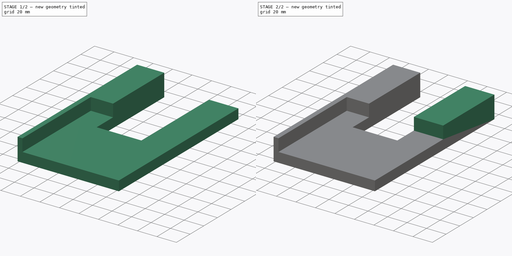
[diagram: build sequence overview — one tinted view per stage of 2, left to right]
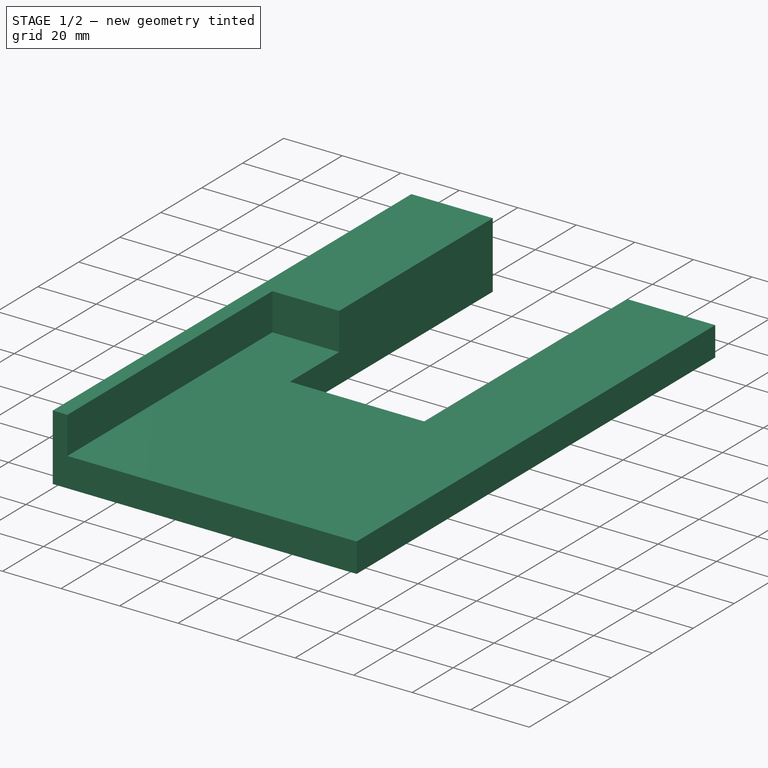
[diagram: stage 1 of 2 — iso view after this stage's code; geometry added in this stage tinted green]
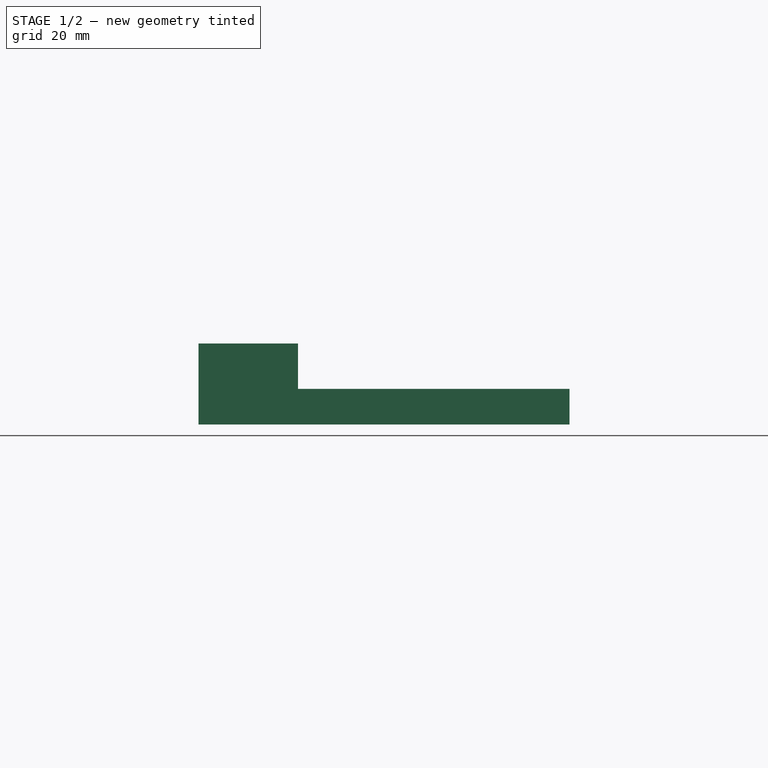
[diagram: stage 1 of 2 — front view after this stage's code; geometry added in this stage tinted green]
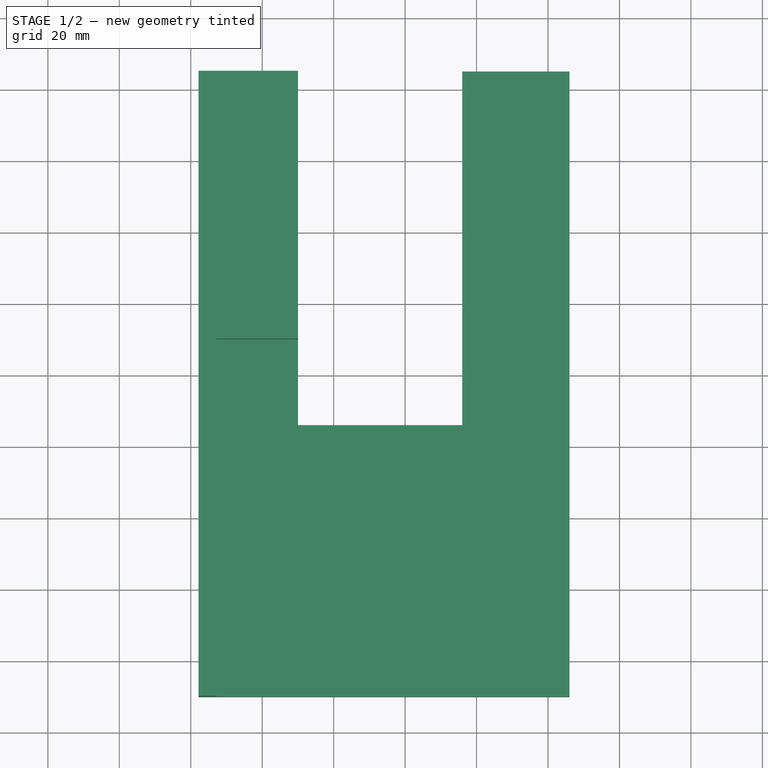
[diagram: stage 1 of 2 — top view after this stage's code; geometry added in this stage tinted green]
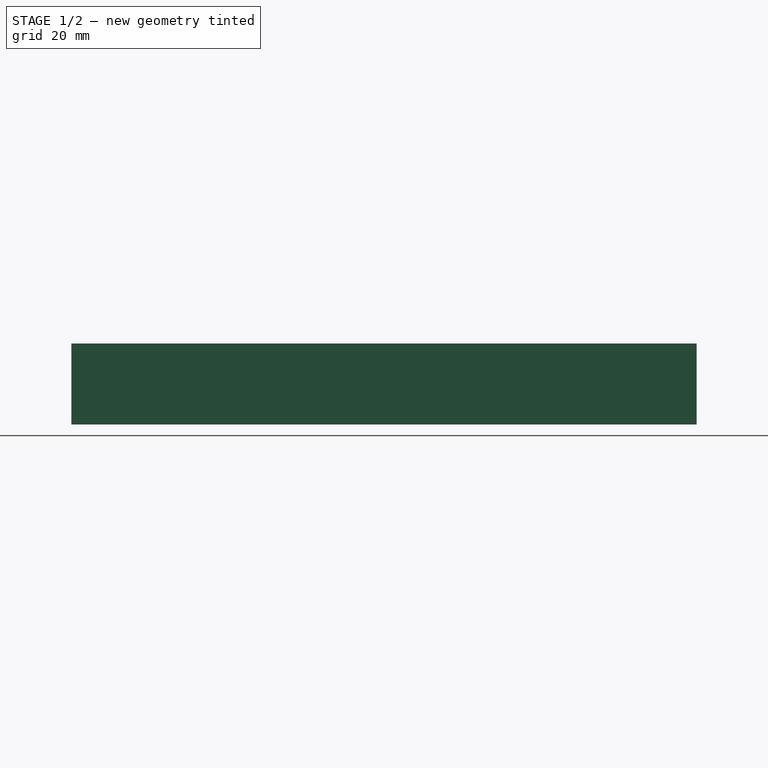
[diagram: stage 1 of 2 — right view after this stage's code; geometry added in this stage tinted green]
FCSTD DOCUMENT  (FreeCAD 1.0R38642 (Git))
Label: Shelf_Router_Guide
License: All rights reserved
LicenseURL: https://en.wikipedia.org/wiki/All_rights_reserved
objects: PartDesign::Pad×3, Sketcher::SketchObject×1, PartDesign::Body×1
note: 12 computed .brp shape members not serialized (recipe doc carries the construction recipe); baked Part::Feature solids carry a one-line shape summary decoded from their .brp

FEATURE [Sketcher::SketchObject] Sketch
  ArcFitTolerance = 1e-06
  AttachmentSupport = -> [XY_Plane]
  FullyConstrained = true
  MakeInternals = false
  MapMode = 5
  sketch-geometry (26):
    g0: LineSegment [constr] StartX=0 StartY=0 StartZ=0 EndX=0 EndY=-24 EndZ=0
    g1: LineSegment [constr] StartX=0 StartY=-24 StartZ=0 EndX=26 EndY=-24 EndZ=0
    g2: LineSegment [constr] StartX=26 StartY=-24 StartZ=0 EndX=26 EndY=0 EndZ=0
    g3: LineSegment [constr] StartX=26 StartY=0 StartZ=0 EndX=0 EndY=0 EndZ=0
    g4: LineSegment StartX=-10 StartY=-34 StartZ=0 EndX=36 EndY=-34 EndZ=0
    g5: LineSegment StartX=-10 StartY=65 StartZ=0 EndX=-37.825 EndY=65 EndZ=0
    g6: LineSegment StartX=-37.825 StartY=65 StartZ=0 EndX=-37.825 EndY=-10 EndZ=0
    g7: LineSegment [constr] StartX=0 StartY=-24 StartZ=0 EndX=0 EndY=-34 EndZ=0
    g8: LineSegment StartX=-37.825 StartY=-110 StartZ=0 EndX=-32.825 EndY=-110 EndZ=0
    g9: LineSegment StartX=-32.825 StartY=-110 StartZ=0 EndX=66 EndY=-110 EndZ=0
    g10: LineSegment StartX=-10 StartY=65 StartZ=0 EndX=-10 EndY=-10 EndZ=0
    g11: LineSegment StartX=-10 StartY=-10 StartZ=0 EndX=-10 EndY=-34 EndZ=0
    g12: LineSegment StartX=-32.825 StartY=-10 StartZ=0 EndX=-32.825 EndY=-110 EndZ=0
    g13: LineSegment StartX=-37.825 StartY=-10 StartZ=0 EndX=-37.825 EndY=-110 EndZ=0
    g14: LineSegment StartX=-10 StartY=-10 StartZ=0 EndX=-32.825 EndY=-10 EndZ=0
    g15: LineSegment StartX=-37.825 StartY=-10 StartZ=0 EndX=-32.825 EndY=-10 EndZ=0
    g16: LineSegment StartX=36 StartY=-34 StartZ=0 EndX=36 EndY=-10 EndZ=0
    g17: LineSegment StartX=36 StartY=-10 StartZ=0 EndX=36 EndY=65 EndZ=0
    g18: LineSegment StartX=66 StartY=-110 StartZ=0 EndX=66 EndY=-10 EndZ=0
    g19: LineSegment StartX=66 StartY=-10 StartZ=0 EndX=66 EndY=65 EndZ=0
    g20: LineSegment StartX=36 StartY=-10 StartZ=0 EndX=66 EndY=-10 EndZ=0
    g21: LineSegment StartX=66 StartY=65 StartZ=0 EndX=36 EndY=65 EndZ=0
    g22: LineSegment [constr] StartX=0 StartY=-10 StartZ=0 EndX=-10 EndY=-10 EndZ=0
    g23: LineSegment [constr] StartX=26 StartY=-10 StartZ=0 EndX=36 EndY=-10 EndZ=0
    g24: LineSegment [constr] StartX=51 StartY=-10 StartZ=0 EndX=51 EndY=0 EndZ=0
    g25: LineSegment [constr] StartX=-32.825 StartY=-10 StartZ=0 EndX=-32.825 EndY=0 EndZ=0
  constraints (74):
    c: Coincident(g0,g1)
    c: Coincident(g1,g2)
    c: Coincident(g2,g3)
    c: Coincident(g3,g0)
    c: Vertical(g0)
    c: Vertical(g2)
    c: Horizontal(g1)
    c: Horizontal(g3)
    c: Coincident(g0,g-1)
    c: DistanceX(g1,g1) = 26
    c: DistanceY(g2,g2) = 24
    c: Horizontal(g4)
    c: Coincident(g16,g4)
    c: Horizontal(g5)
    c: Coincident(g6,g5)
    c: Vertical(g6)
    c: Coincident(g11,g4)
    c: Coincident(g7,g0)
    c: PointOnObject(g7,g4)
    c: Vertical(g7)
    c: DistanceY(g13,g6) = 100
    c: Coincident(g8,g13)
    c: Coincident(g8,g12)
    c: Horizontal(g8)
    c: Coincident(g9,g12)
    c: Coincident(g9,g18)
    c: Horizontal(g9)
    c: Coincident(g10,g11)
    c: Vertical(g10)
    c: Vertical(g11)
    c: Distance(g0,g10) = 10
    c: Vertical(g12)
    c: Vertical(g13)
    c: Coincident(g14,g10)
    c: Horizontal(g14)
    c: Parallel(g14,g15)
    c: Coincident(g16,g17)
    c: Vertical(g16)
    c: Vertical(g17)
    c: Coincident(g18,g19)
    c: Vertical(g18)
    c: Vertical(g19)
    c: Coincident(g20,g16)
    c: Coincident(g20,g18)
    c: Horizontal(g20)
    c: Distance(g13,g12) = 5
    c: Coincident(g10,g5)
    c: Coincident(g12,g14)
    c: Coincident(g12,g15)
    c: Coincident(g21,g19)
    c: Coincident(g21,g17)
    c: Horizontal(g21)
    c: Equal(g10,g17)
    c: PointOnObject(g22,g0)
    c: Horizontal(g22)
    c: PointOnObject(g23,g2)
    c: Horizontal(g23)
    c: Equal(g7,g22)
    c: Equal(g23,g7)
    c: Symmetric(g20,g20,g24)
    c: PointOnObject(g24,g-1)
    c: Vertical(g24)
    c: PointOnObject(g25,g-1)
    c: Vertical(g25)
    c: Equal(g25,g24)
    c: Equal(g7,g24)
    c: Coincident(g13,g15)
    c: Coincident(g6,g13)
    c: Distance(g5,g-1) = 65
    c: Distance(g12,g0) = 32.825
    c: Distance(g18,g2) = 40
    c: Coincident(g22,g10)
    c: Coincident(g23,g16)
    c: Coincident(g25,g12)
FEATURE [PartDesign::Pad] Pad
  Direction = (0,0,1)
  Length = 10
  Length2 = 10
  Profile = -> Sketch [Edge13,Edge14,Edge15,Edge3,Edge4,Edge5,Edge6,Edge7,Edge8,Edge9,Edge10,Edge11,Edge12]
  ReferenceAxis = -> Sketch [N_Axis]
  Refine = true
  Suppressed = false
  Type = 0
FEATURE [PartDesign::Pad] Pad001
  BaseFeature = -> Pad
  Direction = (0,0,1)
  Length = 22.7
  Length2 = 10
  Profile = -> Sketch [Edge17,Edge14,Edge15,Edge3,Edge4,Edge5,Edge2]
  ReferenceAxis = -> Sketch [N_Axis]
  Refine = true
  Suppressed = false
  Type = 0
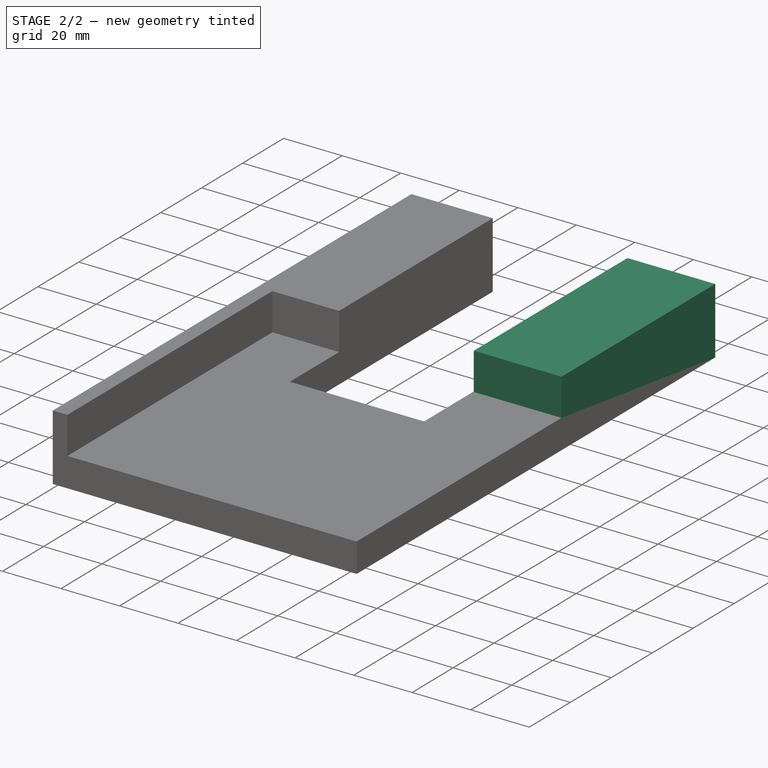
[diagram: stage 2 of 2 — iso view after this stage's code; geometry added in this stage tinted green]
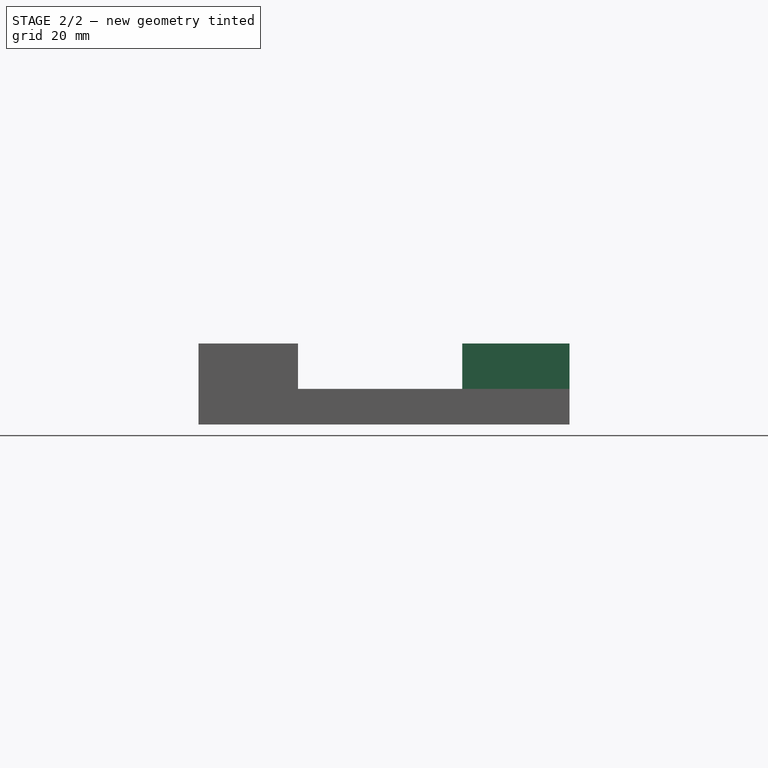
[diagram: stage 2 of 2 — front view after this stage's code; geometry added in this stage tinted green]
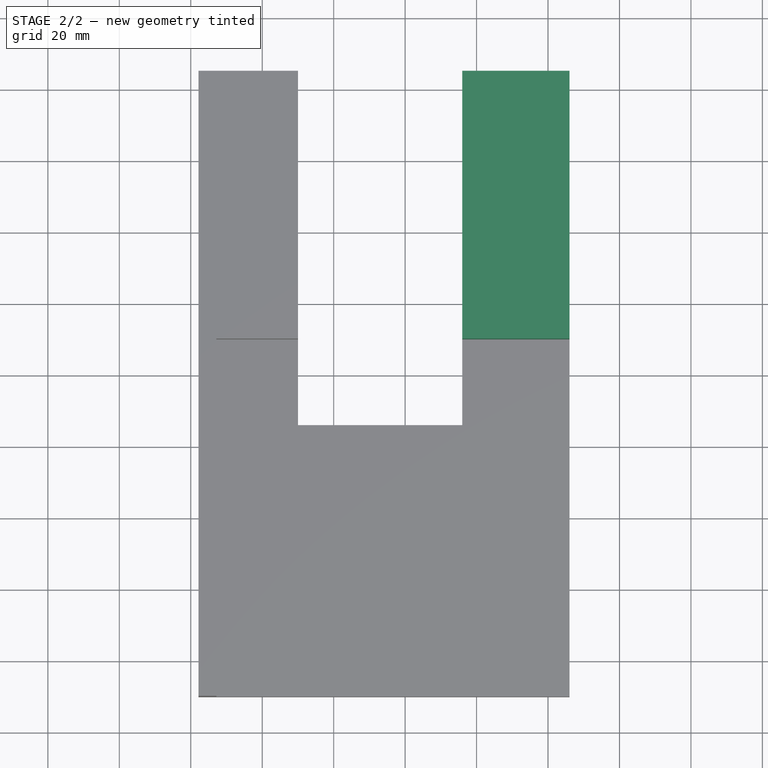
[diagram: stage 2 of 2 — top view after this stage's code; geometry added in this stage tinted green]
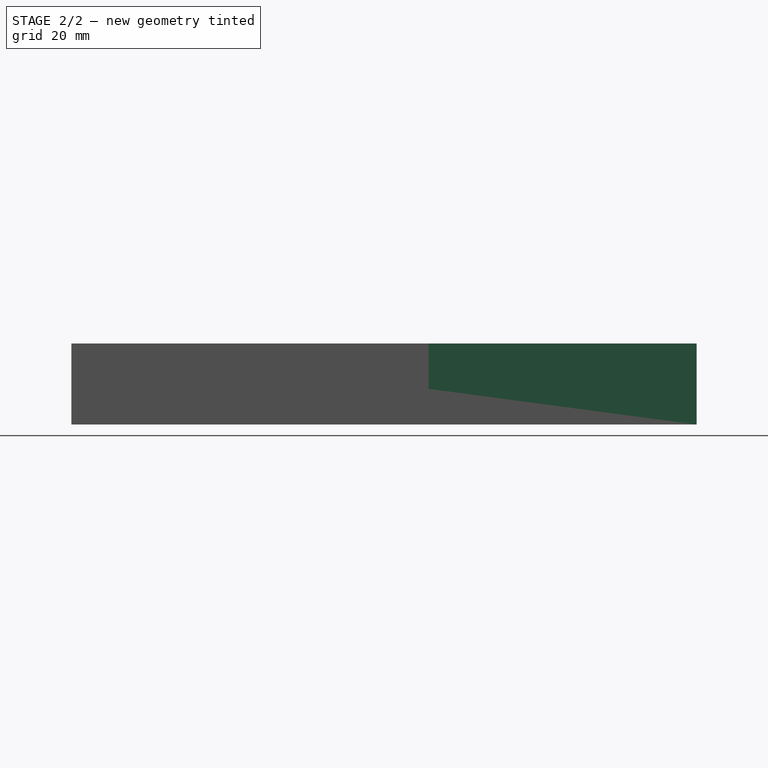
[diagram: stage 2 of 2 — right view after this stage's code; geometry added in this stage tinted green]
FEATURE [PartDesign::Pad] Pad002
  BaseFeature = -> Pad001
  Direction = (0,0,1)
  Length = 22.7
  Length2 = 10
  Profile = -> Sketch [Edge11,Edge1,Edge9,Edge10]
  ReferenceAxis = -> Sketch [N_Axis]
  Refine = true
  Suppressed = false
  Type = 0
FEATURE [PartDesign::Body] Body
  AllowCompound = false
  Group = -> [Sketch,Pad,Pad001,Pad002]
  Origin = -> Origin
  Tip = -> Pad002
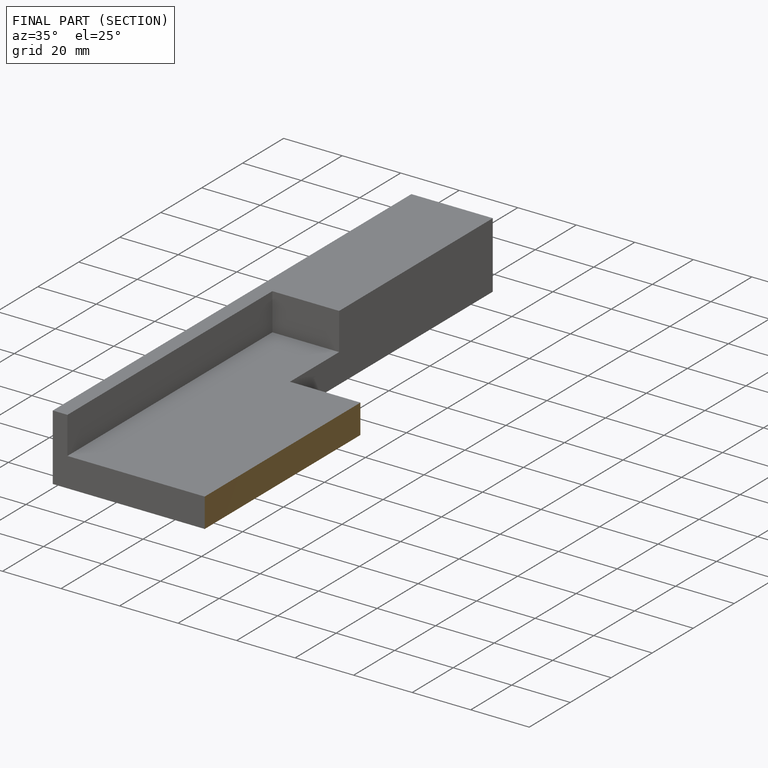
[diagram: finished part — half-section view (interior)]
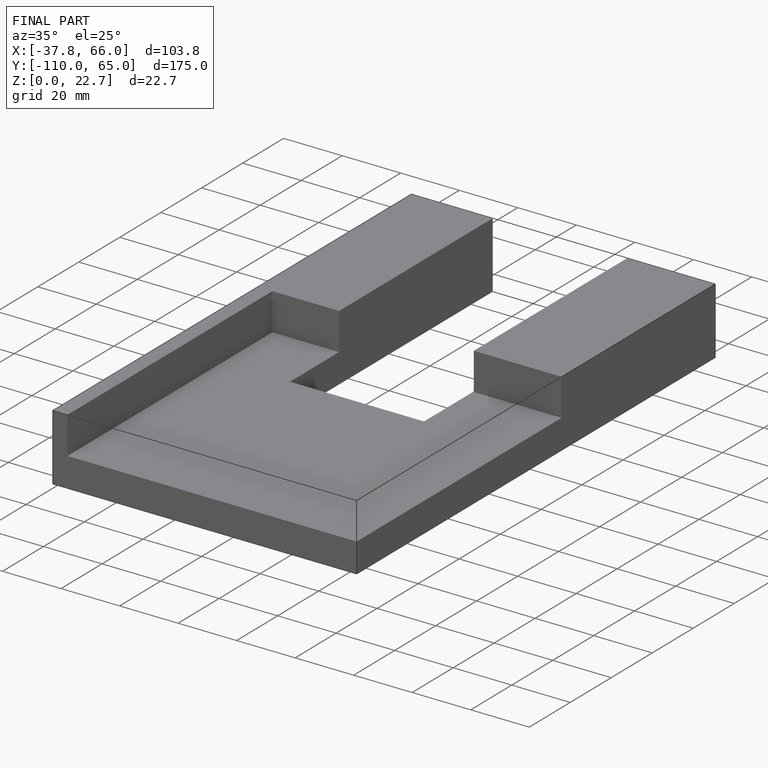
[diagram: finished part — iso view with bounding-box wireframe]
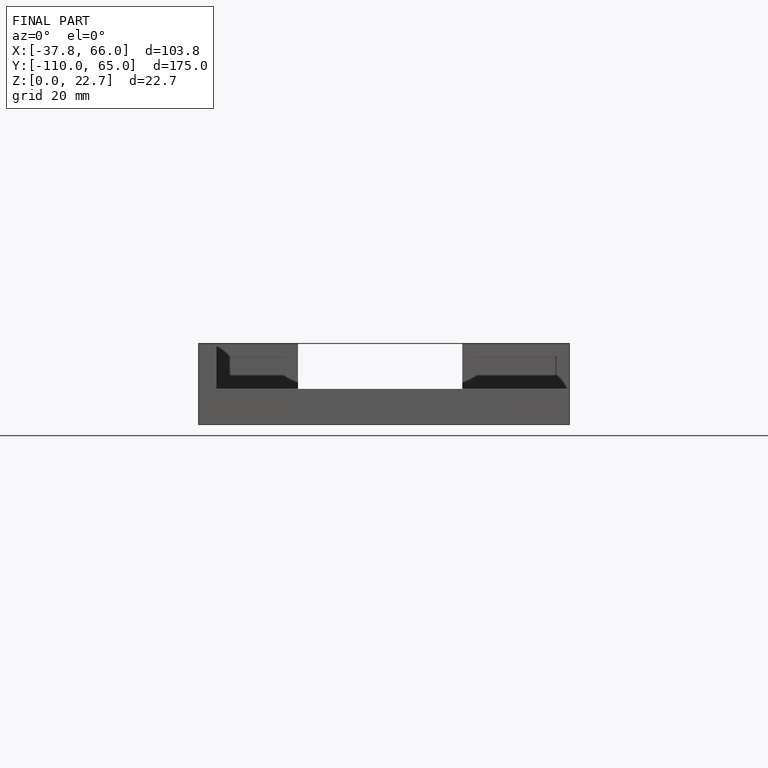
[diagram: finished part — front view with bounding-box wireframe]
